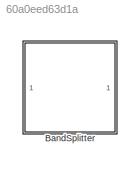
MODEL slx_60a0eed63d1a
KIND library
CONFIG AbsTol = auto
CONFIG EnableMultiTasking = off
CONFIG FixedStep = auto
CONFIG MaxStep = auto
CONFIG MinStep = auto
CONFIG RelTol = 1e-3
CONFIG SampleTimeConstraint = Unconstrained
CONFIG SolverName = VariableStepAuto
CONFIG StartTime = 0.0
CONFIG StopTime = 10.0
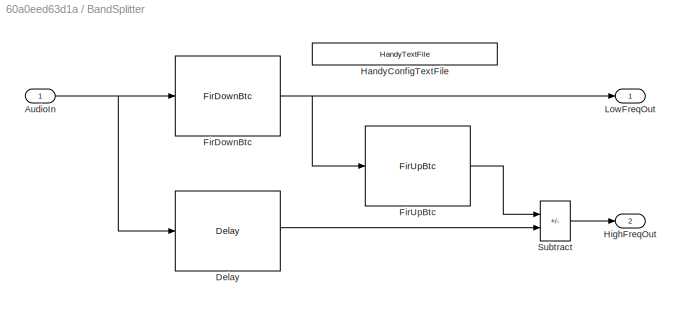
BLOCK [SubSystem] BandSplitter
BLOCK [Inport] BandSplitter/AudioIn
BLOCK [Delay] BandSplitter/Delay
  DelayLength = Config.Delay
  InitialCondition = 0
  InputPortMap = u0
  InputProcessing = Columns as channels (frame based)
  UseCircularBuffer = on
  UserDataPersistent = on
BLOCK [Reference] BandSplitter/FirDownBtc  REF=FirDown/FirDownBtc
  SourceBlock = FirDown/FirDownBtc
  SourceProductName = Bose Blocklib
  SourceType = Blocklib FirDownBtc
BLOCK [Reference] BandSplitter/FirUpBtc  REF=FirUp/FirUpBtc
  SourceBlock = FirUp/FirUpBtc
  SourceProductName = Bose Blocklib
  SourceType = Blocklib FirUpBtc
BLOCK [Reference] BandSplitter/HandyConfigTextFile  REF=HandyTextFile/HandyTextFile
  SourceBlock = HandyTextFile/HandyTextFile
  SourceProductName = Bose Talaria
  SourceType = Talaria Handy Text File
BLOCK [Outport] BandSplitter/HighFreqOut
  Port = 2
BLOCK [Outport] BandSplitter/LowFreqOut
BLOCK [Sum] BandSplitter/Subtract
  IconShape = rectangular
  Inputs = -+
NET BandSplitter/AudioIn:1 -> BandSplitter/Delay:1, BandSplitter/FirDownBtc:1
LINE BandSplitter/Delay:1 -> BandSplitter/Subtract:2
NET BandSplitter/FirDownBtc:1 -> BandSplitter/FirUpBtc:1, BandSplitter/LowFreqOut:1
LINE BandSplitter/FirUpBtc:1 -> BandSplitter/Subtract:1
LINE BandSplitter/Subtract:1 -> BandSplitter/HighFreqOut:1
note: NET lines group one-source signal fan-out (src -> all destinations, sorted); 1:1 wires keep LINE
